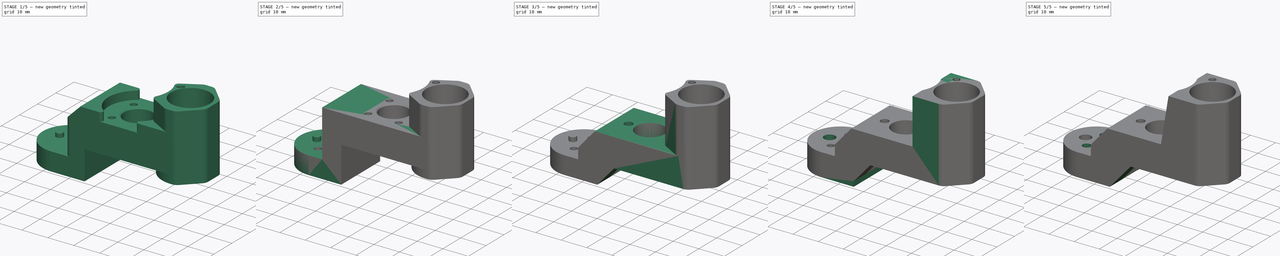
[diagram: build sequence overview — one tinted view per stage of 5, left to right]
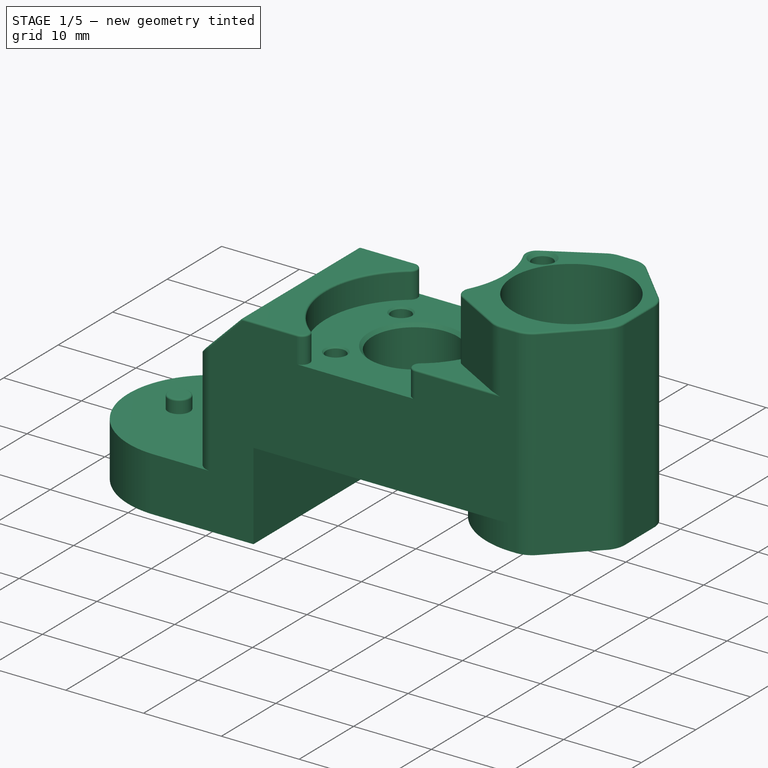
[diagram: stage 1 of 5 — iso view after this stage's code; geometry added in this stage tinted green]
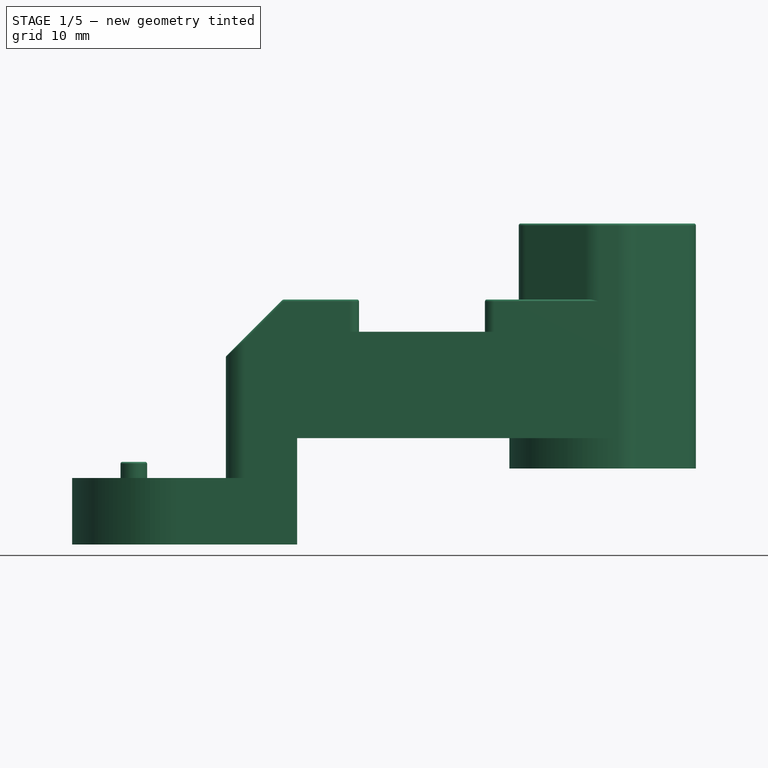
[diagram: stage 1 of 5 — front view after this stage's code; geometry added in this stage tinted green]
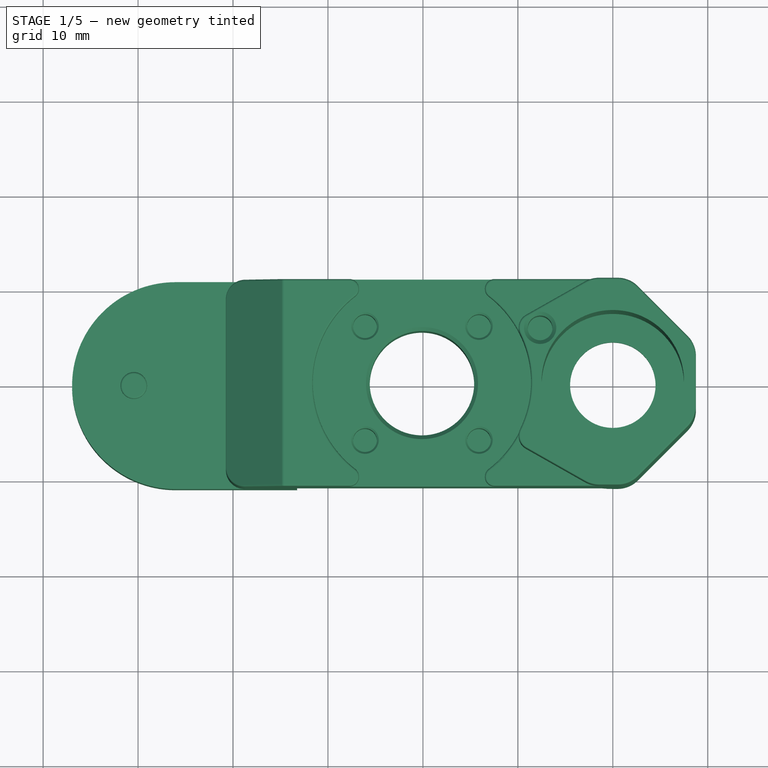
[diagram: stage 1 of 5 — top view after this stage's code; geometry added in this stage tinted green]
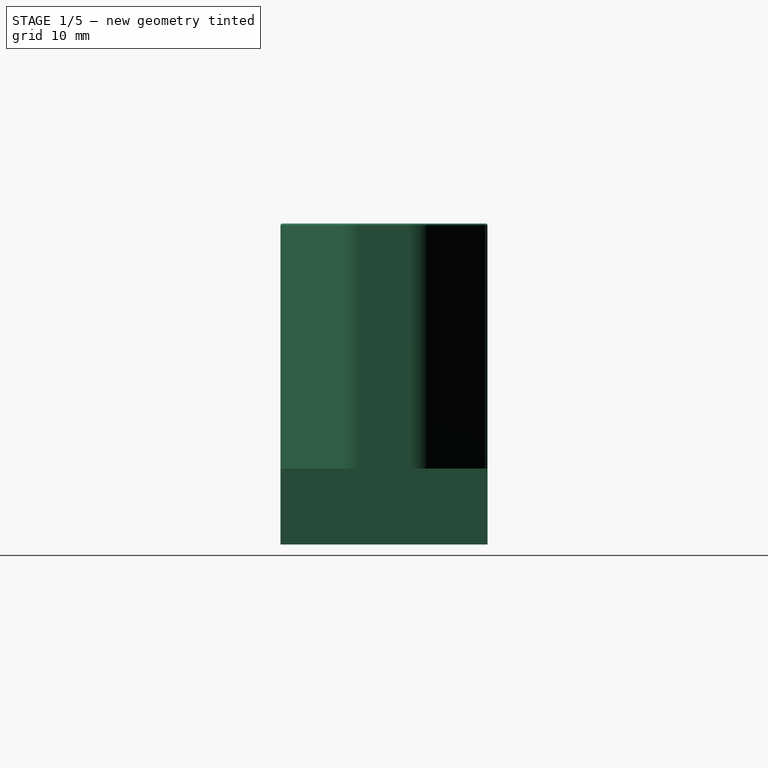
[diagram: stage 1 of 5 — right view after this stage's code; geometry added in this stage tinted green]
FCSTD DOCUMENT  (FreeCAD 1.0R38641 +468 (Git))
Label: k1_z_carriage_oldham
License: All rights reserved
LicenseURL: https://en.wikipedia.org/wiki/All_rights_reserved
objects: Sketcher::SketchObject×29, PartDesign::Pocket×23, PartDesign::Pad×23, PartDesign::Line×5, PartDesign::Plane×2, Part::Feature×1, PartDesign::FeatureBase×1, PartDesign::Body×1
note: 207 computed .brp shape members not serialized (recipe doc carries the construction recipe); baked Part::Feature solids carry a one-line shape summary decoded from their .brp

FEATURE [Part::Feature] Part__Feature  label="step"
  shape: bbox 66.85 x 23.6 x 35.28 mm, 210 faces (baked)
FEATURE [PartDesign::FeatureBase] BaseFeature
  BaseFeature = -> Part__Feature
  Suppressed = false
FEATURE [PartDesign::Plane] DatumPlane
  AttachmentOffset = pos=(0,0,-5) rot=(0,0,1;0rad)
  AttachmentSupport = -> [BaseFeature]
  Length = 94.6667
  MapMode = 5
  Placement = pos=(0,0,3) rot=(0,0,1;0rad)
  ResizeMode = 0
  Width = 62.7961
FEATURE [Sketcher::SketchObject] Sketch
  ArcFitTolerance = 1e-06
  AttachmentSupport = -> [DatumPlane]
  FullyConstrained = true
  MakeInternals = false
  MapMode = 5
  Placement = pos=(0,0,3) rot=(0,0,1;0rad)
  sketch-geometry (4):
    g0: LineSegment StartX=-60.63 StartY=14.24 StartZ=0 EndX=-60.63 EndY=-14.24 EndZ=0
    g1: LineSegment StartX=-60.63 StartY=-14.24 StartZ=0 EndX=-26.34 EndY=-14.24 EndZ=0
    g2: LineSegment StartX=-26.34 StartY=-14.24 StartZ=0 EndX=-26.34 EndY=14.24 EndZ=0
    g3: LineSegment StartX=-26.34 StartY=14.24 StartZ=0 EndX=-60.63 EndY=14.24 EndZ=0
  constraints (11):
    c: Coincident(g0,g1)
    c: Coincident(g1,g2)
    c: Coincident(g2,g3)
    c: Coincident(g3,g0)
    c: Vertical(g0)
    c: Horizontal(g1)
    c: Horizontal(g3)
    c: Symmetric(g1,g2,g-1)
    c: DistanceY(g2,g2) = 28.48
    c: Distance(g2,g-2) = 26.34
    c: Distance(g3,g3) = 34.29
FEATURE [PartDesign::Pocket] Pocket
  BaseFeature = -> BaseFeature
  Direction = (0,0,-1)
  Length = 5
  Length2 = 5
  Profile = -> Sketch
  ReferenceAxis = -> Sketch [N_Axis]
  Refine = true
  Suppressed = false
  Type = 0
FEATURE [PartDesign::Pad] Pad
  BaseFeature = -> Pocket
  Direction = (0,0,-1)
  Length = 2
  Length2 = 10
  Profile = -> Pocket [Face11]
  Refine = true
  Suppressed = false
  Type = 0
FEATURE [PartDesign::Pad] Pad001
  BaseFeature = -> Pad
  Direction = (0,0,-1)
  Length = 10
  Length2 = 10
  Profile = -> Pad [Face28,Face40,Face105,Face106]
  Refine = true
  Suppressed = false
  Type = 3
  UpToFace = -> Pad [Face33]
FEATURE [PartDesign::Line] DatumLine
  AttacherType = Attacher::AttachEngineLine
  AttachmentSupport = -> [Pad001]
  Length = 20
  MapMode = 19
  Placement = pos=(-20.1,1.4e-15,12.1) rot=(0,0,1;3.14159rad)
  ResizeMode = 0
FEATURE [PartDesign::Line] DatumLine001
  AttacherType = Attacher::AttachEngineLine
  AttachmentSupport = -> [Pad001]
  Length = 20
  MapMode = 19
  Placement = pos=(0,0,8.8) rot=(0,0,1;3.14159rad)
  ResizeMode = 0
FEATURE [Sketcher::SketchObject] Sketch001
  ArcFitTolerance = 1e-06
  AttachmentSupport = -> [Pad001]
  ExternalGeometry = -> [Pad001]
  FullyConstrained = true
  MakeInternals = false
  MapMode = 5
  Placement = pos=(0,10.9,0) rot=(0,0.707107,0.707107;3.14159rad)
  sketch-geometry (4):
    g0: LineSegment StartX=33.25 StartY=1 StartZ=0 EndX=33.25 EndY=12.2 EndZ=0
    g1: LineSegment StartX=33.25 StartY=12.2 StartZ=0 EndX=-8.75 EndY=12.2 EndZ=0
    g2: LineSegment StartX=-8.75 StartY=12.2 StartZ=0 EndX=-8.75 EndY=1 EndZ=0
    g3: LineSegment StartX=-8.75 StartY=1 StartZ=0 EndX=33.25 EndY=1 EndZ=0
  constraints (11):
    c: Coincident(g0,g1)
    c: Coincident(g1,g2)
    c: Coincident(g2,g3)
    c: Coincident(g3,g0)
    c: Vertical(g0)
    c: Vertical(g2)
    c: Horizontal(g1)
    c: Horizontal(g3)
    c: Coincident(g0,g-3)
    c: PointOnObject(g1,g-5)
    c: Distance(g-4,g1) = 0.1
FEATURE [PartDesign::Pocket] Pocket001
  BaseFeature = -> Pad001
  Direction = (0,-1,2e-16)
  Length = 5
  Length2 = 5
  Profile = -> Sketch001
  ReferenceAxis = -> Sketch001 [N_Axis]
  Refine = true
  Suppressed = false
  Type = 1
FEATURE [PartDesign::Line] DatumLine002
  AttacherType = Attacher::AttachEngineLine
  AttachmentSupport = -> [Pocket001]
  Length = 20
  MapMode = 19
  Placement = pos=(-7.65632,5.62413,34.8) rot=(0,0,1;0rad)
  ResizeMode = 0
FEATURE [Sketcher::SketchObject] Sketch002
  ArcFitTolerance = 1e-06
  AttachmentSupport = -> [Pocket001]
  ExternalGeometry = -> [Pocket001]
  FullyConstrained = true
  MakeInternals = false
  MapMode = 5
  Placement = pos=(0,2.7e-15,12.2) rot=(1,0,0;3.14159rad)
  sketch-geometry (11):
    g0: ArcOfCircle CenterX=0 CenterY=0 CenterZ=0 NormalX=0 NormalY=0 NormalZ=1 AngleXU=0 Radius=10.9 StartAngle=1.5708 EndAngle=4.71239
    g1: LineSegment StartX=-3.32407e-07 StartY=10.9 StartZ=0 EndX=0.507359 EndY=10.9 EndZ=0
    g2: LineSegment StartX=2.62868 StartY=10.0213 StartZ=0 EndX=7.87132 EndY=4.77868 EndZ=0
    g3: LineSegment StartX=8.75 StartY=-2.65736 StartZ=0 EndX=8.75 EndY=2.65736 EndZ=0
    g4: LineSegment StartX=2.62868 StartY=-10.0213 StartZ=0 EndX=7.87132 EndY=-4.77868 EndZ=0
    g5: ArcOfCircle CenterX=0.507359 CenterY=7.9 CenterZ=0 NormalX=0 NormalY=0 NormalZ=1 AngleXU=0 Radius=3 StartAngle=0.785398 EndAngle=1.5708
    g6: ArcOfCircle CenterX=5.75 CenterY=2.65736 CenterZ=0 NormalX=0 NormalY=0 NormalZ=1 AngleXU=0 Radius=3 StartAngle=9e-16 EndAngle=0.785398
    g7: ArcOfCircle CenterX=5.75 CenterY=-2.65736 CenterZ=0 NormalX=0 NormalY=0 NormalZ=1 AngleXU=0 Radius=3 StartAngle=5.49779 EndAngle=6.28319
    g8: ArcOfCircle CenterX=0.507359 CenterY=-7.9 CenterZ=0 NormalX=0 NormalY=0 NormalZ=1 AngleXU=0 Radius=3 StartAngle=4.71239 EndAngle=5.49779
    g9: LineSegment StartX=0.507359 StartY=-10.9 StartZ=0 EndX=-2e-15 EndY=-10.9 EndZ=0
    g10: Circle CenterX=0 CenterY=0 CenterZ=0 NormalX=0 NormalY=0 NormalZ=1 AngleXU=0 Radius=7.49999
  constraints (28):
    c: Coincident(g0,g-1)
    c: PointOnObject(g0,g-7)
    c: Tangent(g0,g-6) = -1.5708
    c: Coincident(g1,g0)
    c: Coincident(g1,g-8)
    c: Coincident(g2,g-8)
    c: Coincident(g2,g-9)
    c: Coincident(g4,g-11)
    c: Coincident(g4,g-10)
    c: Radius(g-8) = 3
    c: Coincident(g5,g1)
    c: Coincident(g5,g2)
    c: Coincident(g6,g2)
    c: Coincident(g6,g3)
    c: Coincident(g7,g3)
    c: Coincident(g7,g4)
    c: Coincident(g8,g4)
    c: Coincident(g8,g-11)
    c: Coincident(g9,g8)
    c: Coincident(g9,g0)
    c: Coincident(g3,g-9)
    c: Radius(g5) = 3
    c: Radius(g6) = 3
    c: Radius(g7) = 3
    c: Radius(g8) = 3
    c: Coincident(g3,g-10)
    c: Coincident(g10,g0)
    c: Tangent(g10,g-12)
FEATURE [PartDesign::Pad] Pad002
  BaseFeature = -> Pocket001
  Direction = (0,0,-1)
  Length = 3.2
  Length2 = 10
  Profile = -> Sketch002
  ReferenceAxis = -> Sketch002 [N_Axis]
  Refine = true
  Suppressed = false
  Type = 0
FEATURE [Sketcher::SketchObject] Sketch003
  ArcFitTolerance = 1e-06
  AttachmentSupport = -> [Pad002]
  ExternalGeometry = -> [Pad002]
  FullyConstrained = true
  MakeInternals = false
  MapMode = 5
  Placement = pos=(0,0,9) rot=(1,0,0;3.14159rad)
  sketch-geometry (2):
    g0: Circle CenterX=0 CenterY=0 CenterZ=0 NormalX=0 NormalY=0 NormalZ=1 AngleXU=0 Radius=4.5
    g1: Circle CenterX=0 CenterY=0 CenterZ=0 NormalX=0 NormalY=0 NormalZ=1 AngleXU=0 Radius=7.49999
  constraints (4):
    c: Coincident(g0,g-1)
    c: Coincident(g1,g0)
    c: Tangent(g1,g-3)
    c: Diameter(g0) = 9
FEATURE [PartDesign::Pad] Pad003
  BaseFeature = -> Pad002
  Direction = (0,0,-1)
  Length = 2
  Length2 = 10
  Profile = -> Sketch003
  ReferenceAxis = -> Sketch003 [N_Axis]
  Refine = true
  Reversed = true
  Suppressed = false
  Type = 0
FEATURE [PartDesign::Plane] DatumPlane001
  AttachmentOffset = pos=(0,0,-1) rot=(0,0,1;0rad)
  AttachmentSupport = -> [Pad003]
  Length = 94.6667
  MapMode = 5
  Placement = pos=(0,0,7) rot=(0,0,1;0rad)
  ResizeMode = 0
  Width = 62.7961
FEATURE [Sketcher::SketchObject] Sketch004
  ArcFitTolerance = 1e-06
  AttachmentSupport = -> [DatumPlane001]
  ExternalGeometry = -> [Pad003]
  FullyConstrained = true
  MakeInternals = false
  MapMode = 5
  Placement = pos=(0,0,7) rot=(0,0,1;0rad)
  sketch-geometry (4):
    g0: LineSegment StartX=-46.05 StartY=10.9 StartZ=0 EndX=-33.25 EndY=10.9 EndZ=0
    g1: LineSegment StartX=-33.25 StartY=10.9 StartZ=0 EndX=-33.25 EndY=-10.9 EndZ=0
    g2: LineSegment StartX=-33.25 StartY=-10.9 StartZ=0 EndX=-46.05 EndY=-10.9 EndZ=0
    g3: ArcOfCircle CenterX=-46.05 CenterY=-3e-16 CenterZ=0 NormalX=0 NormalY=0 NormalZ=1 AngleXU=0 Radius=10.9 StartAngle=1.5708 EndAngle=4.71239
  constraints (10):
    c: Coincident(g1,g0)
    c: Coincident(g1,g-6)
    c: Coincident(g2,g-6)
    c: Coincident(g2,g1)
    c: Coincident(g0,g-5)
    c: Coincident(g0,g-5)
    c: Radius(g-3) = 10.9
    c: Coincident(g3,g0)
    c: Coincident(g3,g2)
    c: Tangent(g3,g-3)
FEATURE [PartDesign::Pad] Pad004
  BaseFeature = -> Pad003
  Direction = (0,0,1)
  Length = 1.2
  Length2 = 10
  Profile = -> Sketch004
  ReferenceAxis = -> Sketch004 [N_Axis]
  Refine = true
  Suppressed = false
  Type = 0
FEATURE [PartDesign::Pocket] Pocket002
  BaseFeature = -> Pad004
  Direction = (0,0,-1)
  Length = 0.2
  Length2 = 5
  Profile = -> Pad004 [Face8]
  Refine = true
  Suppressed = false
  Type = 0
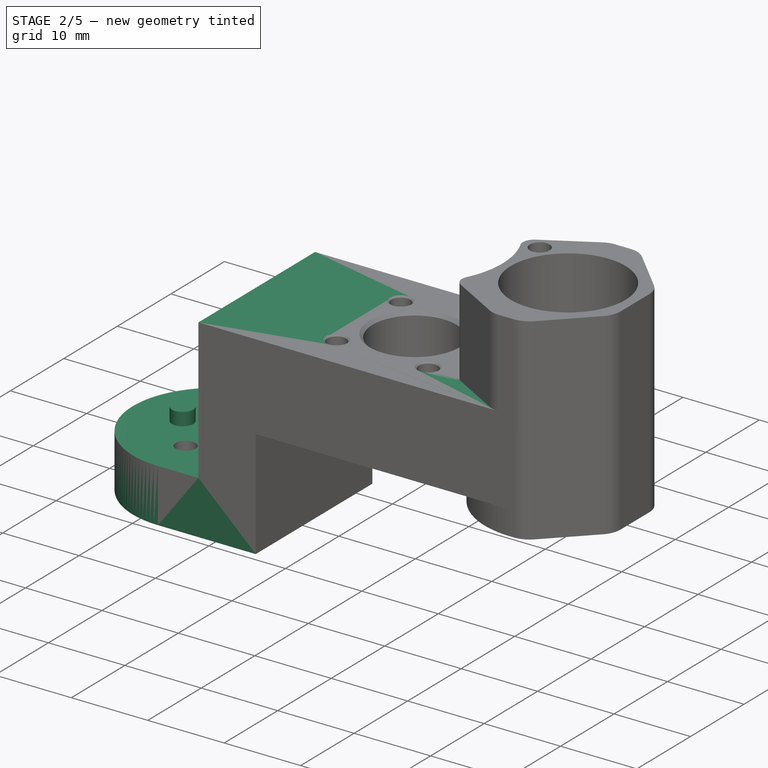
[diagram: stage 2 of 5 — iso view after this stage's code; geometry added in this stage tinted green]
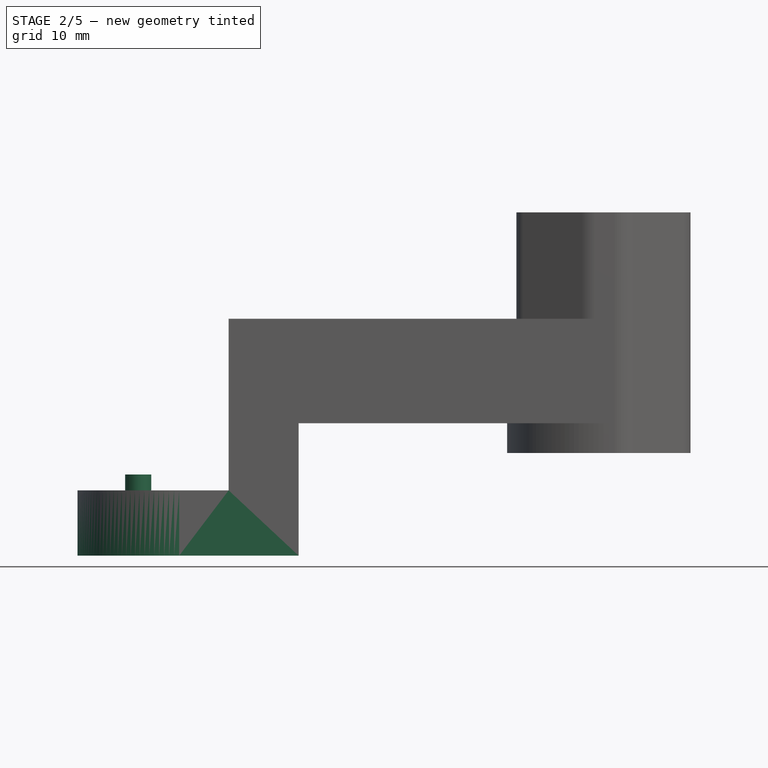
[diagram: stage 2 of 5 — front view after this stage's code; geometry added in this stage tinted green]
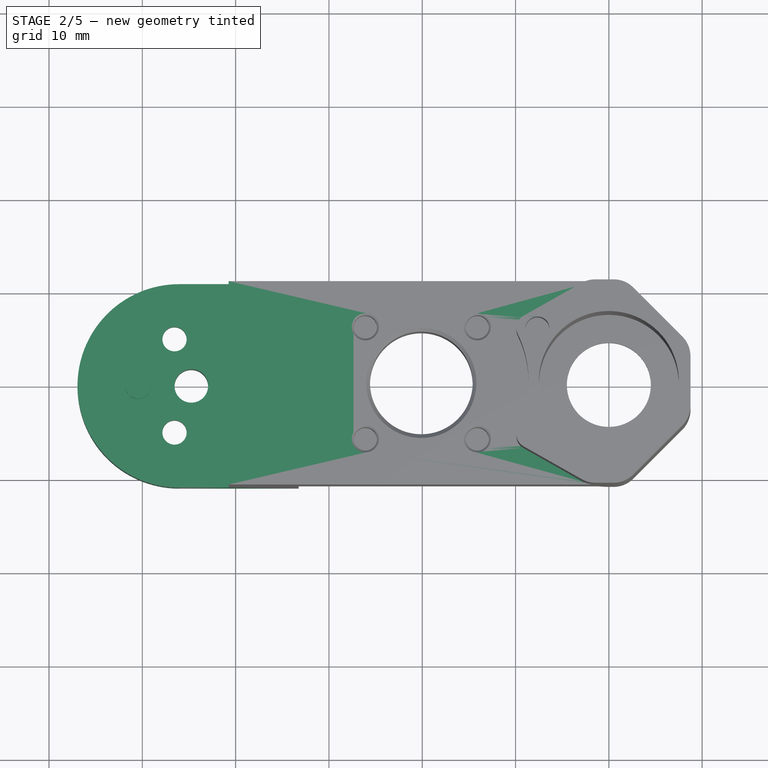
[diagram: stage 2 of 5 — top view after this stage's code; geometry added in this stage tinted green]
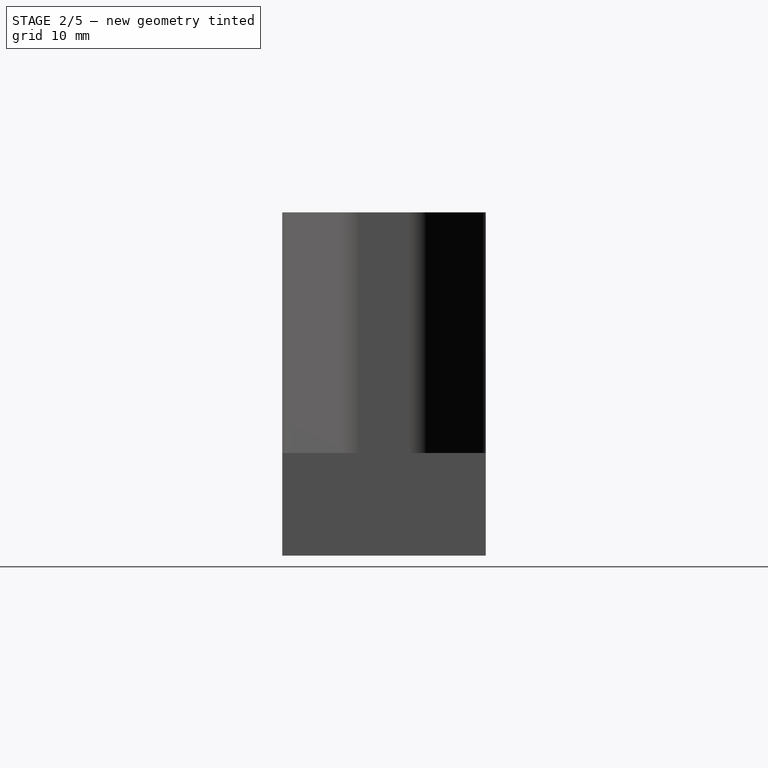
[diagram: stage 2 of 5 — right view after this stage's code; geometry added in this stage tinted green]
FEATURE [PartDesign::Pocket] Pocket003
  BaseFeature = -> Pocket002
  Direction = (0,0,1)
  Length = 5
  Length2 = 5
  Profile = -> Pocket002 [Face81,Face83,Face82]
  Refine = true
  Suppressed = false
  Type = 0
FEATURE [PartDesign::Pocket] Pocket004
  BaseFeature = -> Pocket003
  Direction = (0,0,-1)
  Length = 3
  Length2 = 5
  Profile = -> Pocket003 [Face4]
  Refine = true
  Suppressed = false
  Type = 0
FEATURE [PartDesign::Pad] Pad005
  BaseFeature = -> Pocket004
  Direction = (0,0,-1)
  Length = 3
  Length2 = 10
  Profile = -> Pocket004 [Face8]
  Refine = true
  Suppressed = false
  Type = 0
FEATURE [Sketcher::SketchObject] Sketch005
  ArcFitTolerance = 1e-06
  AttachmentSupport = -> [Pad005]
  ExternalGeometry = -> [Pad005]
  FullyConstrained = true
  MakeInternals = false
  MapMode = 5
  Placement = pos=(0,0,9.7) rot=(0,0,1;0rad)
  sketch-geometry (1):
    g0: Circle CenterX=-50.45 CenterY=0 CenterZ=0 NormalX=0 NormalY=0 NormalZ=1 AngleXU=0 Radius=1.4
  constraints (2):
    c: Coincident(g0,g-3)
    c: Equal(g0,g-3)
FEATURE [PartDesign::Pocket] Pocket005
  BaseFeature = -> Pad005
  Direction = (0,0,-1)
  Length = 3
  Length2 = 5
  Profile = -> Sketch005
  ReferenceAxis = -> Sketch005 [N_Axis]
  Refine = true
  Suppressed = false
  Type = 0
FEATURE [Sketcher::SketchObject] Sketch006
  ArcFitTolerance = 1e-06
  AttachmentSupport = -> [Pocket005]
  ExternalGeometry = -> [Pocket005]
  FullyConstrained = true
  MakeInternals = false
  MapMode = 5
  Placement = pos=(0,0,-2) rot=(1,0,0;3.14159rad)
  sketch-geometry (2):
    g0: Circle CenterX=-46.55 CenterY=5 CenterZ=0 NormalX=0 NormalY=0 NormalZ=1 AngleXU=0 Radius=2.15
    g1: Circle CenterX=-46.55 CenterY=-5 CenterZ=0 NormalX=0 NormalY=0 NormalZ=1 AngleXU=0 Radius=2.15
  constraints (4):
    c: Coincident(g0,g-3)
    c: Coincident(g1,g-4)
    c: Equal(g1,g0)
    c: Diameter(g0) = 4.3
FEATURE [PartDesign::Pocket] Pocket006
  BaseFeature = -> Pocket005
  Direction = (0,0,1)
  Length = 4
  Length2 = 5
  Profile = -> Sketch006
  ReferenceAxis = -> Sketch006 [N_Axis]
  Refine = true
  Suppressed = false
  Type = 0
FEATURE [Sketcher::SketchObject] Sketch007
  ArcFitTolerance = 1e-06
  AttachmentSupport = -> [Pocket006]
  FullyConstrained = true
  MakeInternals = false
  MapMode = 5
  Placement = pos=(0,0,34.8) rot=(0,0,1;0rad)
  sketch-geometry (4):
    g0: LineSegment StartX=-14.985 StartY=14.345 StartZ=0 EndX=-14.985 EndY=-14.345 EndZ=0
    g1: LineSegment StartX=-14.985 StartY=-14.345 StartZ=0 EndX=14.985 EndY=-14.345 EndZ=0
    g2: LineSegment StartX=14.985 StartY=-14.345 StartZ=0 EndX=14.985 EndY=14.345 EndZ=0
    g3: LineSegment StartX=14.985 StartY=14.345 StartZ=0 EndX=-14.985 EndY=14.345 EndZ=0
  constraints (10):
    c: Coincident(g0,g1)
    c: Coincident(g1,g2)
    c: Coincident(g2,g3)
    c: Coincident(g3,g0)
    c: Vertical(g0)
    c: Horizontal(g1)
    c: Symmetric(g1,g2,g-1)
    c: Symmetric(g0,g2,g-2)
    c: Distance(g1,g1) = 29.97
    c: DistanceY(g2,g2) = 28.69
FEATURE [PartDesign::Pocket] Pocket007
  BaseFeature = -> Pocket006
  Direction = (0,0,-1)
  Length = 0.5
  Length2 = 5
  Profile = -> Sketch007
  ReferenceAxis = -> Sketch007 [N_Axis]
  Refine = true
  Suppressed = false
  Type = 0
FEATURE [PartDesign::Pad] Pad006
  BaseFeature = -> Pocket007
  Direction = (0,0,1)
  Length = 0.5
  Length2 = 10
  Profile = -> Pocket007 [Face6]
  Refine = true
  Suppressed = false
  Type = 0
FEATURE [Sketcher::SketchObject] Sketch008
  ArcFitTolerance = 1e-06
  AttachmentSupport = -> [Pad006]
  ExternalGeometry = -> [Pad006]
  FullyConstrained = true
  MakeInternals = false
  MapMode = 5
  Placement = pos=(0,0,34.8) rot=(0,0,1;0rad)
  sketch-geometry (10):
    g0: LineSegment StartX=-1.45589 StartY=10.9 StartZ=0 EndX=-45.6259 EndY=10.9 EndZ=0
    g1: LineSegment StartX=-1.45589 StartY=-10.9 StartZ=0 EndX=-45.6259 EndY=-10.9 EndZ=0
    g2: LineSegment StartX=-45.6259 StartY=-10.9 StartZ=0 EndX=-45.6259 EndY=10.9 EndZ=0
    g3: LineSegment StartX=-9.14877 StartY=6.99193 StartZ=0 EndX=-2.93396 EndY=10.5106 EndZ=0
    g4: LineSegment StartX=-9.14877 StartY=-6.99193 StartZ=0 EndX=-2.93396 EndY=-10.5106 EndZ=0
    g5: ArcOfCircle CenterX=-20.1 CenterY=2.2e-15 CenterZ=0 NormalX=0 NormalY=0 NormalZ=1 AngleXU=0 Radius=11.5 StartAngle=5.83044 EndAngle=6.73593
    g6: ArcOfCircle CenterX=-1.45589 CenterY=7.9 CenterZ=0 NormalX=0 NormalY=0 NormalZ=1 AngleXU=0 Radius=3 StartAngle=1.5708 EndAngle=2.08598
    g7: ArcOfCircle CenterX=-8.40973 CenterY=5.68662 CenterZ=0 NormalX=0 NormalY=0 NormalZ=1 AngleXU=0 Radius=1.5 StartAngle=2.08598 EndAngle=3.59433
    g8: ArcOfCircle CenterX=-8.40973 CenterY=-5.68662 CenterZ=0 NormalX=0 NormalY=0 NormalZ=1 AngleXU=0 Radius=1.5 StartAngle=2.68885 EndAngle=4.19721
    g9: ArcOfCircle CenterX=-1.45589 CenterY=-7.9 CenterZ=0 NormalX=0 NormalY=0 NormalZ=1 AngleXU=0 Radius=3 StartAngle=4.19721 EndAngle=4.71239
  constraints (30):
    c: Coincident(g0,g-5)
    c: Horizontal(g0)
    c: Coincident(g1,g-6)
    c: Horizontal(g1)
    c: Coincident(g2,g1)
    c: Coincident(g2,g0)
    c: Vertical(g2)
    c: Distance(g0,g0) = 44.17
    c: Coincident(g3,g-9)
    c: Coincident(g3,g-9)
    c: Coincident(g4,g-7)
    c: Coincident(g4,g-7)
    c: Coincident(g5,g-8)
    c: Coincident(g5,g-8)
    c: Radius(g-8) = 11.5
    c: Radius(g5) = 11.5
    c: Radius(g-10) = 1.5
    c: Radius(g-11) = 3
    c: Coincident(g6,g0)
    c: Coincident(g6,g3)
    c: Coincident(g7,g3)
    c: Coincident(g7,g5)
    c: Coincident(g8,g5)
    c: Coincident(g8,g4)
    c: Radius(g8) = 1.5
    c: Radius(g7) = 1.5
    c: Radius(g6) = 3
    c: Coincident(g9,g4)
    c: Coincident(g9,g1)
    c: Radius(g9) = 3
FEATURE [PartDesign::Pocket] Pocket008
  BaseFeature = -> Pad006
  Direction = (0,0,-1)
  Length = 0
  Length2 = 5
  Profile = -> Sketch008
  ReferenceAxis = -> Sketch008 [N_Axis]
  Refine = true
  Suppressed = false
  Type = 3
  UpToFace = -> Pad006 [Face32]
FEATURE [Sketcher::SketchObject] Sketch009
  ArcFitTolerance = 1e-06
  AttachmentSupport = -> [Pocket008]
  ExternalGeometry = -> [Pocket008]
  FullyConstrained = true
  MakeInternals = false
  MapMode = 5
  Placement = pos=(0,0,23.4) rot=(0,0,1;0rad)
  sketch-geometry (4):
    g0: LineSegment StartX=-37.8672 StartY=10.9 StartZ=0 EndX=-40.75 EndY=10.9 EndZ=0
    g1: LineSegment StartX=-40.75 StartY=10.9 StartZ=0 EndX=-40.75 EndY=-10.9 EndZ=0
    g2: LineSegment StartX=-40.75 StartY=-10.9 StartZ=0 EndX=-37.8672 EndY=-10.9 EndZ=0
    g3: LineSegment StartX=-37.8672 StartY=-10.9 StartZ=0 EndX=-37.8672 EndY=10.9 EndZ=0
  constraints (11):
    c: Coincident(g0,g1)
    c: Coincident(g1,g2)
    c: Coincident(g2,g3)
    c: Coincident(g3,g0)
    c: Horizontal(g0)
    c: Horizontal(g2)
    c: Vertical(g1)
    c: Vertical(g3)
    c: Coincident(g0,g-3)
    c: PointOnObject(g1,g-5)
    c: PointOnObject(g0,g-4)
FEATURE [PartDesign::Pocket] Pocket009
  BaseFeature = -> Pocket008
  Direction = (0,0,-1)
  Length = 0
  Length2 = 5
  Profile = -> Sketch009
  ReferenceAxis = -> Sketch009 [N_Axis]
  Refine = true
  Suppressed = false
  Type = 3
  UpToFace = -> Pocket008 [Face22]
FEATURE [PartDesign::Pad] Pad007
  BaseFeature = -> Pocket009
  Direction = (-1,0,0)
  Length = 2.88
  Length2 = 10
  Profile = -> Pocket009 [Face27]
  Refine = true
  Suppressed = false
  Type = 0
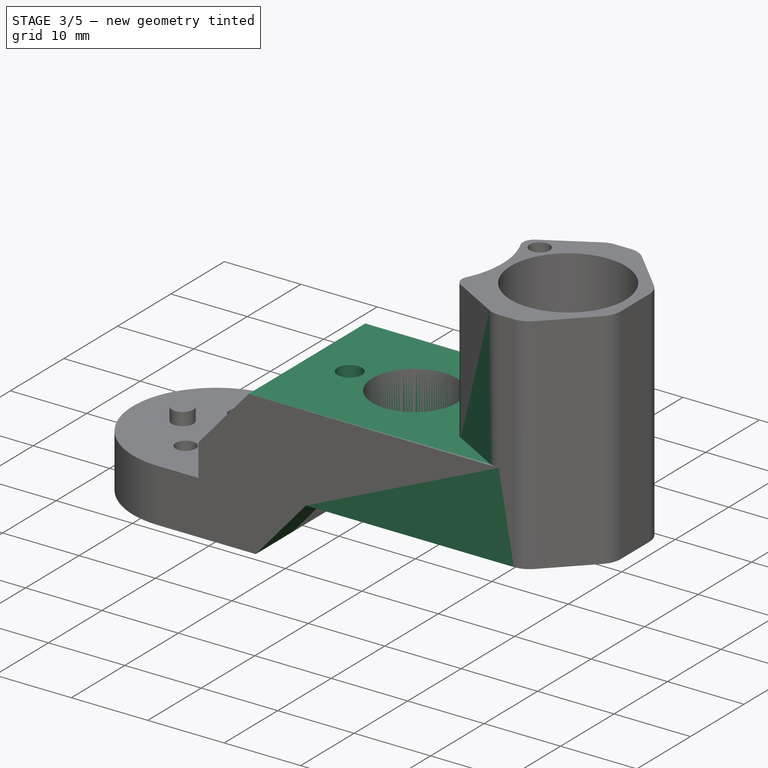
[diagram: stage 3 of 5 — iso view after this stage's code; geometry added in this stage tinted green]
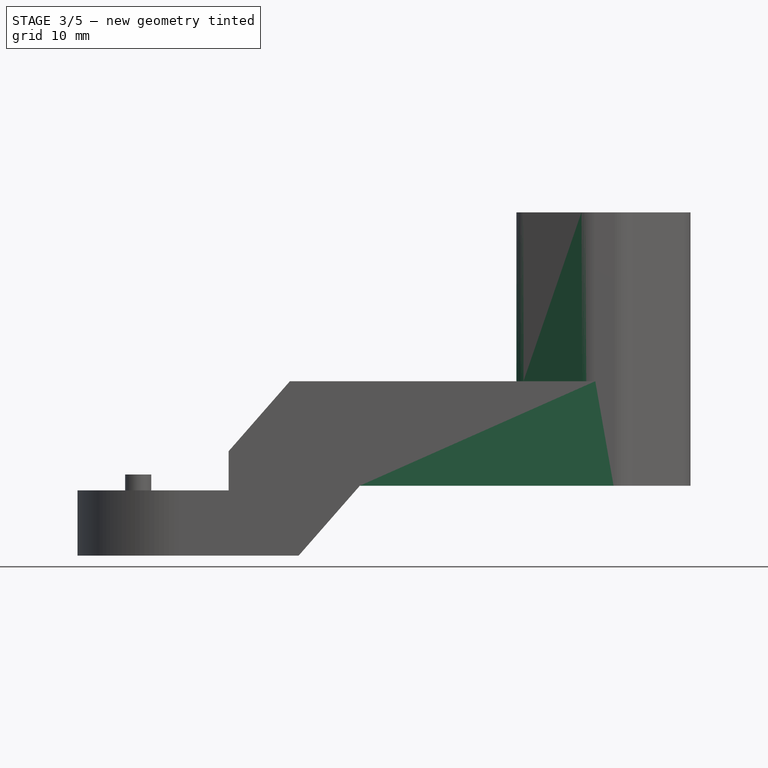
[diagram: stage 3 of 5 — front view after this stage's code; geometry added in this stage tinted green]
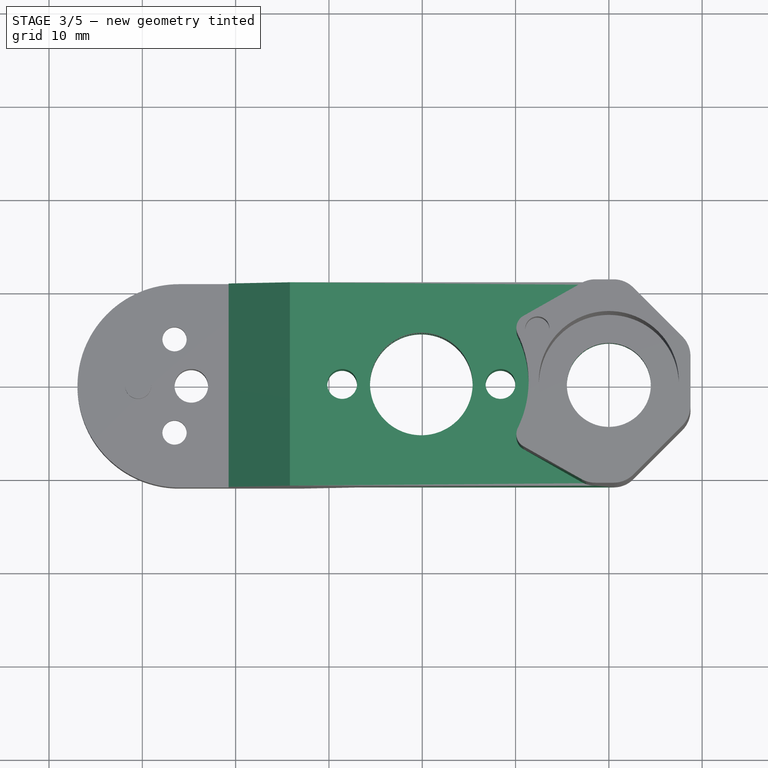
[diagram: stage 3 of 5 — top view after this stage's code; geometry added in this stage tinted green]
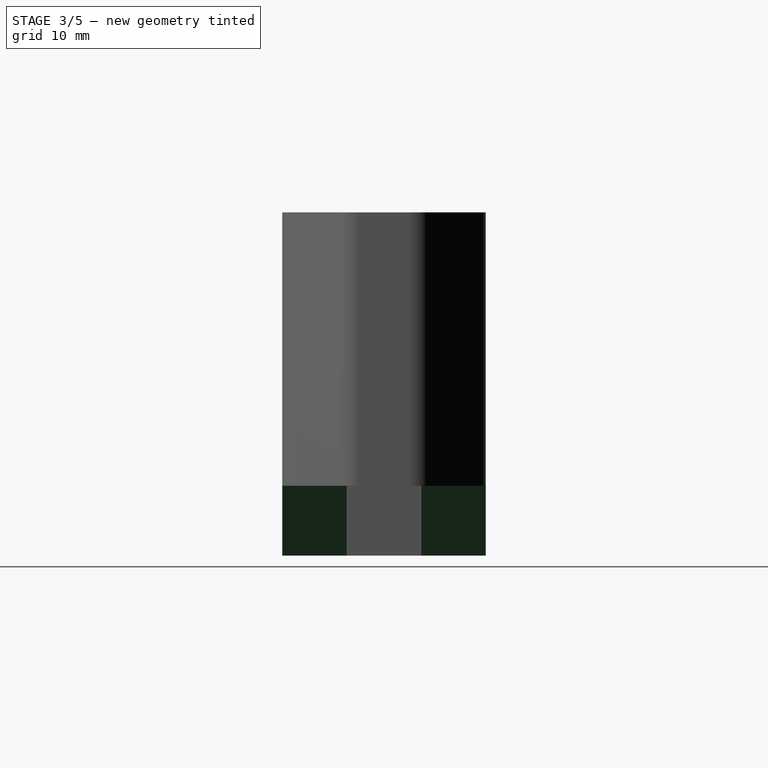
[diagram: stage 3 of 5 — right view after this stage's code; geometry added in this stage tinted green]
FEATURE [PartDesign::Line] DatumLine003
  AttacherType = Attacher::AttachEngineLine
  AttachmentSupport = -> [Pad007]
  Length = 20
  MapMode = 19
  Placement = pos=(-26.1,6,23.2) rot=(0,1,0;3.14159rad)
  ResizeMode = 0
FEATURE [PartDesign::Line] DatumLine004
  AttacherType = Attacher::AttachEngineLine
  AttachmentSupport = -> [Pad007]
  Length = 20
  MapMode = 19
  Placement = pos=(-14.1,-6,23.2) rot=(0,1,0;3.14159rad)
  ResizeMode = 0
FEATURE [Sketcher::SketchObject] Sketch010
  ArcFitTolerance = 1e-06
  AttachmentSupport = -> [Pad007]
  ExternalGeometry = -> [Pad007]
  FullyConstrained = true
  MakeInternals = false
  MapMode = 5
  Placement = pos=(0,0,23.4) rot=(0,0,1;0rad)
  sketch-geometry (4):
    g0: LineSegment StartX=-32.82 StartY=10.9 StartZ=0 EndX=-32.82 EndY=-10.9 EndZ=0
    g1: LineSegment StartX=-32.82 StartY=-10.9 StartZ=0 EndX=-11 EndY=-10.9 EndZ=0
    g2: LineSegment StartX=-11 StartY=-10.9 StartZ=0 EndX=-11 EndY=10.9 EndZ=0
    g3: LineSegment StartX=-11 StartY=10.9 StartZ=0 EndX=-32.82 EndY=10.9 EndZ=0
  constraints (12):
    c: Coincident(g0,g1)
    c: Coincident(g1,g2)
    c: Coincident(g2,g3)
    c: Coincident(g3,g0)
    c: Vertical(g0)
    c: Vertical(g2)
    c: Horizontal(g1)
    c: Horizontal(g3)
    c: PointOnObject(g0,g-3)
    c: PointOnObject(g1,g-4)
    c: Distance(g2,g-2) = 11
    c: Distance(g1,g1) = 21.82
FEATURE [PartDesign::Pocket] Pocket010
  BaseFeature = -> Pad007
  Direction = (0,0,-1)
  Length = 6
  Length2 = 5
  Profile = -> Sketch010
  ReferenceAxis = -> Sketch010 [N_Axis]
  Refine = true
  Suppressed = false
  Type = 0
FEATURE [PartDesign::Pad] Pad008
  BaseFeature = -> Pocket010
  Direction = (0,0,1)
  Length = 10
  Length2 = 10
  Profile = -> Pocket010 [Face28]
  Refine = true
  Suppressed = false
  Type = 3
  UpToFace = -> Pocket010 [Face30]
FEATURE [PartDesign::Pocket] Pocket011
  BaseFeature = -> Pad008
  Direction = (0,0,-1)
  Length = 6.7
  Length2 = 5
  Profile = -> Pad008 [Face42]
  Refine = true
  Suppressed = false
  Type = 0
FEATURE [PartDesign::Pad] Pad009
  BaseFeature = -> Pocket011
  Direction = (0,-2e-16,-1)
  Length = 6.7
  Length2 = 10
  Profile = -> Pocket011 [Face10]
  Refine = true
  Suppressed = false
  Type = 0
FEATURE [PartDesign::Pad] Pad010
  BaseFeature = -> Pad009
  Direction = (0,0,-1)
  Length = 10
  Length2 = 10
  Profile = -> Pad009 [Face15]
  Refine = true
  Suppressed = false
  Type = 3
  UpToFace = -> Pad009 [Face24]
FEATURE [Sketcher::SketchObject] Sketch011
  ArcFitTolerance = 1e-06
  AttachmentSupport = -> [Pad010]
  ExternalGeometry = -> [Pad010]
  FullyConstrained = true
  MakeInternals = false
  MapMode = 5
  Placement = pos=(0,-10.9,0) rot=(1,0,0;1.5708rad)
  sketch-geometry (3):
    g0: LineSegment StartX=-33.25 StartY=-2 StartZ=0 EndX=-26.6842 EndY=5.5 EndZ=0
    g1: LineSegment StartX=-33.25 StartY=5.5 StartZ=0 EndX=-26.6842 EndY=5.5 EndZ=0
    g2: LineSegment StartX=-33.25 StartY=-2 StartZ=0 EndX=-33.25 EndY=5.5 EndZ=0
  constraints (7):
    c: Coincident(g0,g-3)
    c: PointOnObject(g0,g-4)
    c: Coincident(g1,g-4)
    c: Coincident(g1,g0)
    c: Coincident(g2,g0)
    c: Coincident(g2,g1)
    c: Angle(g0,g2) = 0.719076
FEATURE [PartDesign::Pad] Pad011
  BaseFeature = -> Pad010
  Direction = (0,-1,2e-16)
  Length = 10
  Length2 = 10
  Profile = -> Sketch011
  ReferenceAxis = -> Sketch011 [N_Axis]
  Refine = true
  Suppressed = false
  Type = 3
  UpToFace = -> Pad010 [Face31]
FEATURE [Sketcher::SketchObject] Sketch012
  ArcFitTolerance = 1e-06
  AttachmentSupport = -> [Pad011]
  ExternalGeometry = -> [Pad011]
  FullyConstrained = true
  MakeInternals = false
  MapMode = 5
  Placement = pos=(0,-10.9,0) rot=(1,0,0;1.5708rad)
  sketch-geometry (3):
    g0: LineSegment StartX=-40.7472 StartY=9.2 StartZ=0 EndX=-34.1814 EndY=16.7 EndZ=0
    g1: LineSegment StartX=-40.7472 StartY=9.2 StartZ=0 EndX=-40.7472 EndY=16.7 EndZ=0
    g2: LineSegment StartX=-40.7472 StartY=16.7 StartZ=0 EndX=-34.1814 EndY=16.7 EndZ=0
  constraints (8):
    c: PointOnObject(g0,g-3)
    c: PointOnObject(g0,g-4)
    c: Coincident(g1,g0)
    c: Coincident(g1,g-4)
    c: Coincident(g2,g1)
    c: Coincident(g2,g0)
    c: Parallel(g0,g-5)
    c: Distance(g1,g1) = 7.5
FEATURE [PartDesign::Pocket] Pocket012
  BaseFeature = -> Pad011
  Direction = (0,1,-2e-16)
  Length = 5
  Length2 = 5
  Profile = -> Sketch012
  ReferenceAxis = -> Sketch012 [N_Axis]
  Refine = true
  Suppressed = false
  Type = 1
FEATURE [Sketcher::SketchObject] Sketch013
  ArcFitTolerance = 1e-06
  AttachmentSupport = -> [Pocket012]
  ExternalGeometry = -> [DatumLine003,DatumLine004,Pocket012]
  FullyConstrained = true
  MakeInternals = false
  MapMode = 5
  Placement = pos=(0,0,16.7) rot=(0,0,1;0rad)
  sketch-geometry (3):
    g0: LineSegment [constr] StartX=-28.5853 StartY=0 StartZ=0 EndX=-11.6147 EndY=0 EndZ=0
    g1: Circle CenterX=-28.5853 CenterY=0 CenterZ=0 NormalX=0 NormalY=0 NormalZ=1 AngleXU=0 Radius=1.6
    g2: Circle CenterX=-11.6147 CenterY=0 CenterZ=0 NormalX=0 NormalY=0 NormalZ=1 AngleXU=0 Radius=1.6
  constraints (8):
    c: Distance(g-3,g-4) = 16.9706
    c: PointOnObject(g0,g-1)
    c: Symmetric(g0,g0,g-5)
    c: DistanceX(g0,g0) = 16.9706
    c: Coincident(g1,g0)
    c: Coincident(g2,g0)
    c: Equal(g2,g1)
    c: Diameter(g1) = 3.2
FEATURE [PartDesign::Pocket] Pocket013
  BaseFeature = -> Pocket012
  Direction = (0,0,-1)
  Length = 5
  Length2 = 5
  Profile = -> Sketch013
  ReferenceAxis = -> Sketch013 [N_Axis]
  Refine = true
  Suppressed = false
  Type = 1
FEATURE [Sketcher::SketchObject] Sketch015
  ArcFitTolerance = 1e-06
  AttachmentSupport = -> [Pocket013]
  ExternalGeometry = -> [Pocket013]
  FullyConstrained = true
  MakeInternals = false
  MapMode = 5
  Placement = pos=(0,0,-2) rot=(1,0,0;3.14159rad)
  sketch-geometry (4):
    g0: LineSegment StartX=-33.25 StartY=4 StartZ=0 EndX=-33.25 EndY=-4 EndZ=0
    g1: LineSegment StartX=-33.25 StartY=-4 StartZ=0 EndX=-26.6842 EndY=-4 EndZ=0
    g2: LineSegment StartX=-26.6842 StartY=-4 StartZ=0 EndX=-26.6842 EndY=4 EndZ=0
    g3: LineSegment StartX=-26.6842 StartY=4 StartZ=0 EndX=-33.25 EndY=4 EndZ=0
  constraints (11):
    c: Coincident(g0,g1)
    c: Coincident(g1,g2)
    c: Coincident(g2,g3)
    c: Coincident(g3,g0)
    c: Vertical(g2)
    c: Horizontal(g1)
    c: Horizontal(g3)
    c: Symmetric(g0,g0,g-1)
    c: Distance(g0,g0) = 8
    c: PointOnObject(g0,g-3)
    c: PointOnObject(g2,g-4)
FEATURE [PartDesign::Pocket] Pocket014
  BaseFeature = -> Pocket013
  Direction = (0,0,1)
  Length = 0
  Length2 = 5
  Profile = -> Sketch015
  ReferenceAxis = -> Sketch015 [N_Axis]
  Refine = true
  Suppressed = false
  Type = 3
  UpToFace = -> Pocket013 [Face10]
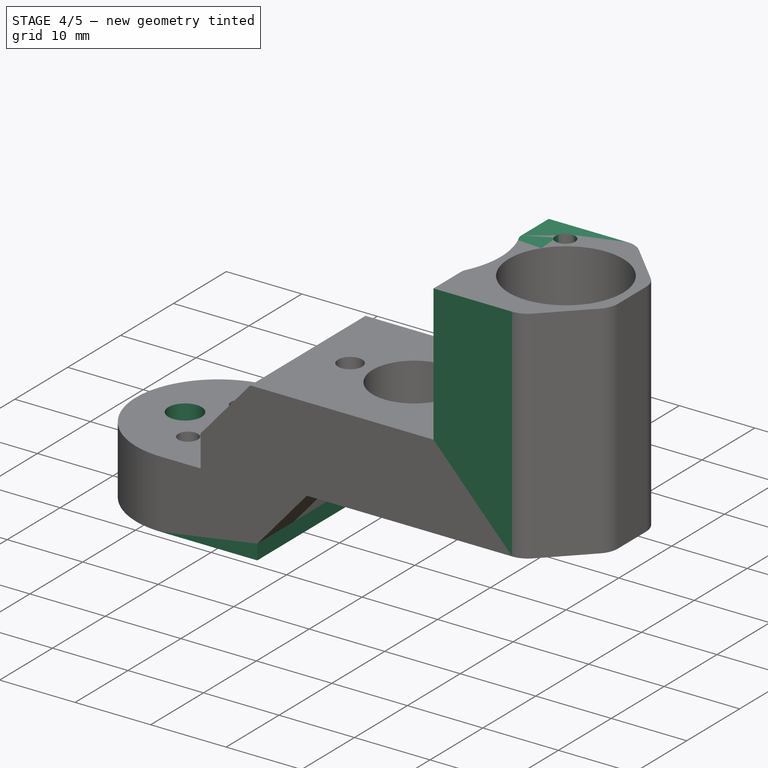
[diagram: stage 4 of 5 — iso view after this stage's code; geometry added in this stage tinted green]
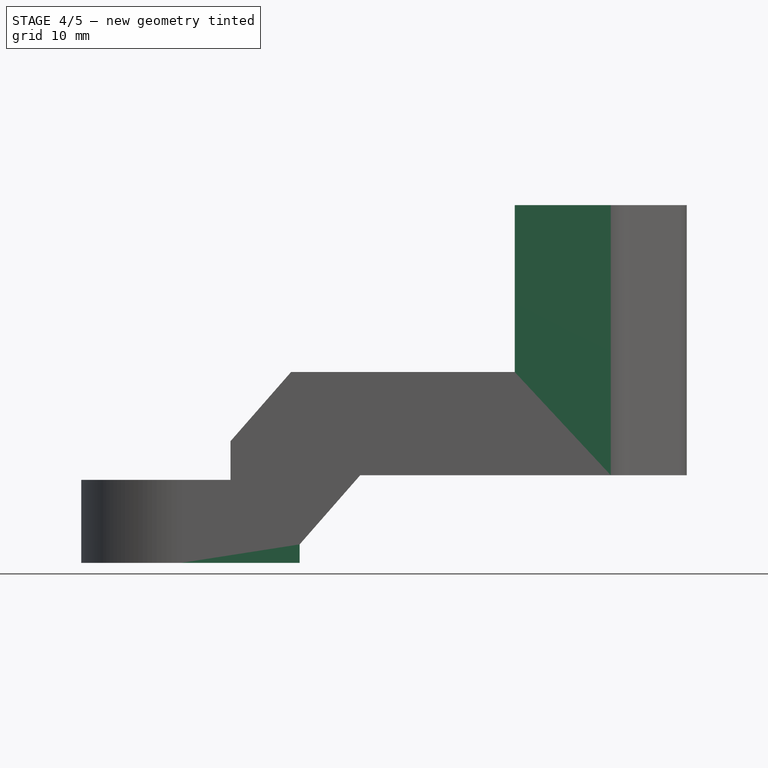
[diagram: stage 4 of 5 — front view after this stage's code; geometry added in this stage tinted green]
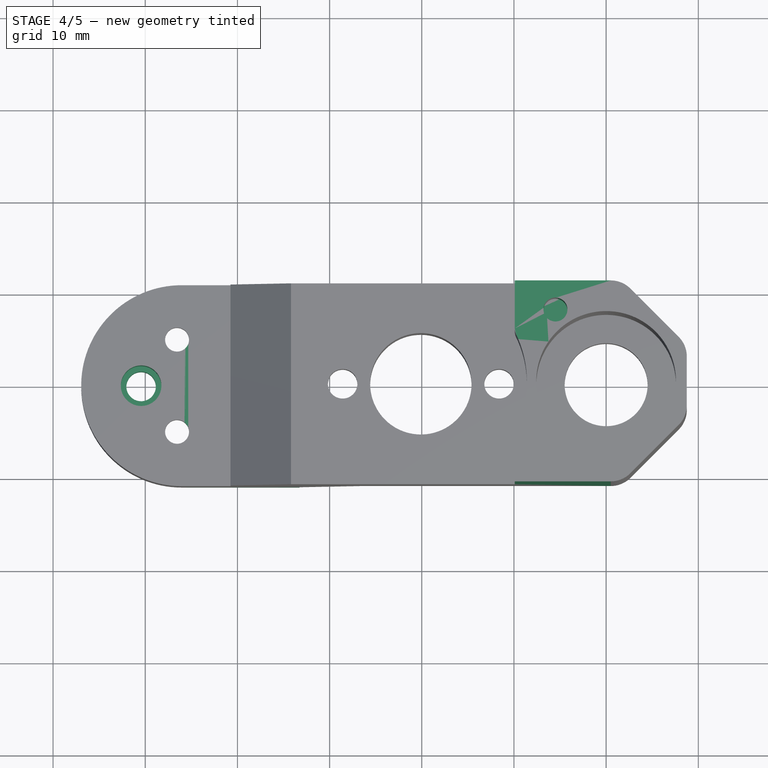
[diagram: stage 4 of 5 — top view after this stage's code; geometry added in this stage tinted green]
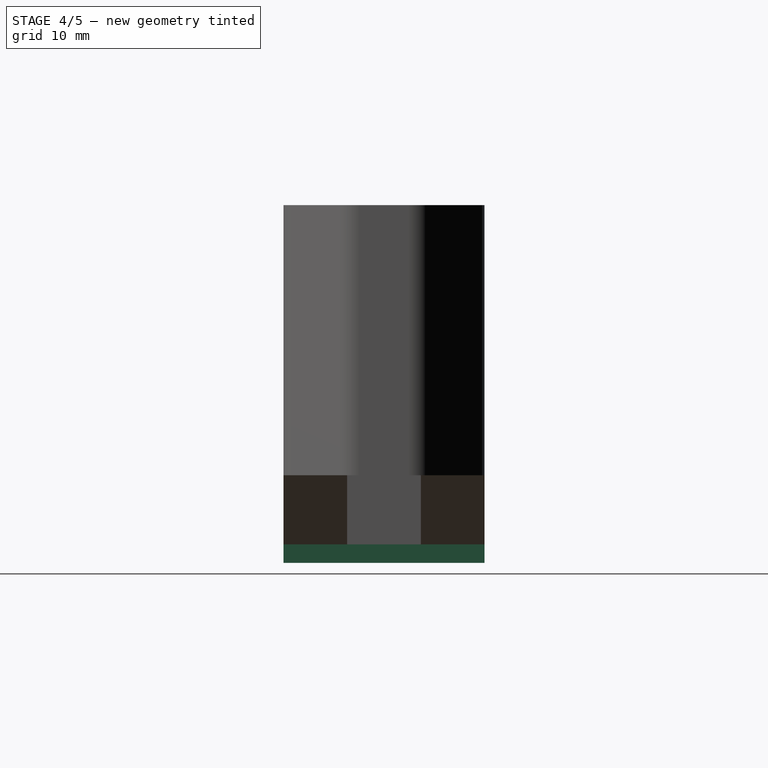
[diagram: stage 4 of 5 — right view after this stage's code; geometry added in this stage tinted green]
FEATURE [Sketcher::SketchObject] Sketch016
  ArcFitTolerance = 1e-06
  AttachmentSupport = -> [Pocket014]
  ExternalGeometry = -> [Pocket014]
  FullyConstrained = true
  MakeInternals = false
  MapMode = 5
  Placement = pos=(0,0,5.5) rot=(1,0,0;3.14159rad)
  sketch-geometry (2):
    g0: Circle CenterX=-28.5853 CenterY=0 CenterZ=0 NormalX=0 NormalY=0 NormalZ=1 AngleXU=0 Radius=2.15
    g1: Circle CenterX=-11.6147 CenterY=0 CenterZ=0 NormalX=0 NormalY=0 NormalZ=1 AngleXU=0 Radius=2.15
  constraints (4):
    c: Coincident(g0,g-3)
    c: Coincident(g1,g-4)
    c: Equal(g1,g0)
    c: Diameter(g0) = 4.3
FEATURE [PartDesign::Pocket] Pocket015
  BaseFeature = -> Pocket014
  Direction = (0,0,1)
  Length = 6
  Length2 = 5
  Profile = -> Sketch016
  ReferenceAxis = -> Sketch016 [N_Axis]
  Refine = true
  Suppressed = false
  Type = 0
FEATURE [PartDesign::Pocket] Pocket016
  BaseFeature = -> Pocket015
  Direction = (0,0,-1)
  Length = 5
  Length2 = 5
  Profile = -> Pocket015 [Face45]
  Refine = true
  Suppressed = false
  Type = 1
FEATURE [Sketcher::SketchObject] Sketch017
  ArcFitTolerance = 1e-06
  AttachmentSupport = -> [Pocket016]
  ExternalGeometry = -> [Pocket016]
  FullyConstrained = true
  MakeInternals = false
  MapMode = 5
  Placement = pos=(0,0,5) rot=(0,0,1;0rad)
  sketch-geometry (1):
    g0: Circle CenterX=-44.75 CenterY=0 CenterZ=0 NormalX=0 NormalY=0 NormalZ=1 AngleXU=0 Radius=1.8
  constraints (3):
    c: Coincident(g0,g-3)
    c: Equal(g0,g-3)
    c: Radius(g-4) = 1.4
FEATURE [PartDesign::Pad] Pad012
  BaseFeature = -> Pocket016
  Direction = (0,0,1)
  Length = 10
  Length2 = 10
  Profile = -> Sketch017
  ReferenceAxis = -> Sketch017 [N_Axis]
  Refine = true
  Suppressed = false
  Type = 3
  UpToFace = -> Pocket016 [Face8]
FEATURE [Sketcher::SketchObject] Sketch018
  ArcFitTolerance = 1e-06
  AttachmentSupport = -> [Pad012]
  ExternalGeometry = -> [Pad012]
  FullyConstrained = true
  MakeInternals = false
  MapMode = 5
  Placement = pos=(0,0,5) rot=(0,0,1;0rad)
  sketch-geometry (1):
    g0: Circle CenterX=-50.45 CenterY=0 CenterZ=0 NormalX=0 NormalY=0 NormalZ=1 AngleXU=0 Radius=2.2
  constraints (2):
    c: Diameter(g0) = 4.4
    c: Coincident(g0,g-3)
FEATURE [PartDesign::Pocket] Pocket017
  BaseFeature = -> Pad012
  Direction = (0,0,-1)
  Length = 5
  Length2 = 5
  Profile = -> Sketch018
  ReferenceAxis = -> Sketch018 [N_Axis]
  Refine = true
  Suppressed = false
  Type = 0
FEATURE [Sketcher::SketchObject] Sketch019
  ArcFitTolerance = 1e-06
  AttachmentSupport = -> [Pocket017]
  ExternalGeometry = -> [Pocket017]
  FullyConstrained = true
  MakeInternals = false
  MapMode = 5
  Placement = pos=(0,0,-2) rot=(1,0,0;3.14159rad)
  sketch-geometry (1):
    g0: Circle CenterX=-50.45 CenterY=0 CenterZ=0 NormalX=0 NormalY=0 NormalZ=1 AngleXU=0 Radius=1.6
  constraints (2):
    c: Coincident(g0,g-3)
    c: Diameter(g0) = 3.2
FEATURE [PartDesign::Pocket] Pocket018
  BaseFeature = -> Pocket017
  Direction = (0,0,1)
  Length = 5
  Length2 = 5
  Profile = -> Sketch019
  ReferenceAxis = -> Sketch019 [N_Axis]
  Refine = true
  Suppressed = false
  Type = 1
FEATURE [Sketcher::SketchObject] Sketch020
  ArcFitTolerance = 1e-06
  AttachmentSupport = -> [Pocket018]
  ExternalGeometry = -> [Pocket018]
  FullyConstrained = true
  MakeInternals = false
  MapMode = 5
  Placement = pos=(0,0,34.8) rot=(0,0,1;0rad)
  sketch-geometry (7):
    g0: LineSegment StartX=-9.90973 StartY=5.68662 StartZ=0 EndX=-9.90973 EndY=10.9 EndZ=0
    g1: LineSegment StartX=-1.45589 StartY=10.9 StartZ=0 EndX=-9.90973 EndY=10.9 EndZ=0
    g2: LineSegment StartX=-9.90973 StartY=5.68662 StartZ=0 EndX=-9.14877 EndY=6.99193 EndZ=0
    g3: LineSegment StartX=-9.14877 StartY=6.99193 StartZ=0 EndX=-1.45589 EndY=10.9 EndZ=0
    g4: LineSegment StartX=-9.90973 StartY=-5.68662 StartZ=0 EndX=-9.90973 EndY=-10.9 EndZ=0
    g5: LineSegment StartX=-9.90973 StartY=-10.9 StartZ=0 EndX=-1.45589 EndY=-10.9 EndZ=0
    g6: LineSegment StartX=-9.90973 StartY=-5.68662 StartZ=0 EndX=-1.45589 EndY=-10.9 EndZ=0
  constraints (16):
    c: PointOnObject(g0,g-3)
    c: Vertical(g0)
    c: Coincident(g1,g0)
    c: Tangent(g0,g-4) = 1.5708
    c: Coincident(g2,g0)
    c: Coincident(g2,g-4)
    c: Coincident(g3,g2)
    c: Coincident(g3,g1)
    c: Coincident(g1,g-3)
    c: PointOnObject(g4,g-7)
    c: Vertical(g4)
    c: Coincident(g5,g4)
    c: Coincident(g5,g-7)
    c: Coincident(g6,g4)
    c: Coincident(g6,g5)
    c: Tangent(g4,g-6) = -1.5708
FEATURE [PartDesign::Pad] Pad013
  BaseFeature = -> Pocket018
  Direction = (0,0,1)
  Length = 10
  Length2 = 10
  Profile = -> Sketch020
  ReferenceAxis = -> Sketch020 [N_Axis]
  Refine = true
  Suppressed = false
  Type = 3
  UpToFace = -> Pocket018 [Face6]
FEATURE [Sketcher::SketchObject] Sketch021
  ArcFitTolerance = 1e-06
  AttachmentSupport = -> [Pad013]
  ExternalGeometry = -> [Pad013]
  FullyConstrained = true
  MakeInternals = false
  MapMode = 5
  Placement = pos=(0,0,34.8) rot=(0,0,1;0rad)
  sketch-geometry (1):
    g0: Circle CenterX=0 CenterY=0 CenterZ=0 NormalX=0 NormalY=0 NormalZ=1 AngleXU=0 Radius=7.575
  constraints (3):
    c: Diameter(g-3) = 15
    c: Coincident(g0,g-1)
    c: Diameter(g0) = 15.15
FEATURE [PartDesign::Pocket] Pocket019
  BaseFeature = -> Pad013
  Direction = (0,0,-1)
  Length = 0
  Length2 = 5
  Profile = -> Sketch021
  ReferenceAxis = -> Sketch021 [N_Axis]
  Refine = true
  Suppressed = false
  Type = 3
  UpToFace = -> Pad013 [Face45]
FEATURE [PartDesign::Pad] Pad014
  BaseFeature = -> Pocket019
  Direction = (0,0,1)
  Length = 10
  Length2 = 10
  Profile = -> Pocket019 [Face27]
  Refine = true
  Suppressed = false
  Type = 3
  UpToFace = -> Pocket019 [Face1]
FEATURE [Sketcher::SketchObject] Sketch023
  ArcFitTolerance = 1e-06
  AttachmentSupport = -> [Pad014]
  FullyConstrained = true
  MakeInternals = false
  MapMode = 5
  Placement = pos=(0,0,34.8) rot=(0,0,1;0rad)
  sketch-geometry (1):
    g0: Circle CenterX=-5.5 CenterY=7.74597 CenterZ=0 NormalX=0 NormalY=0 NormalZ=1 AngleXU=0 Radius=1.3
  constraints (3):
    c: Diameter(g0) = 2.6
    c: Distance(g0,g-1) = 9.5
    c: Distance(g0,g-2) = 5.5
FEATURE [PartDesign::Pocket] Pocket020
  BaseFeature = -> Pad014
  Direction = (0,0,-1)
  Length = 8
  Length2 = 5
  Profile = -> Sketch023
  ReferenceAxis = -> Sketch023 [N_Axis]
  Refine = true
  Suppressed = false
  Type = 0
FEATURE [PartDesign::Pad] Pad015
  BaseFeature = -> Pocket020
  Direction = (0,0,-1)
  Length = 2
  Length2 = 10
  Profile = -> Pocket020 [Face26]
  Refine = true
  Suppressed = false
  Type = 0
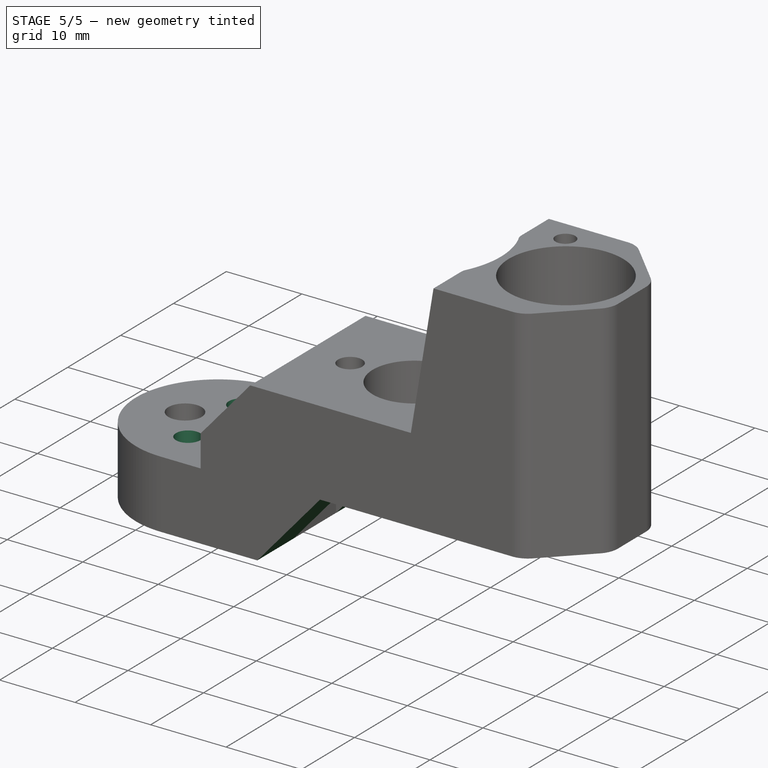
[diagram: stage 5 of 5 — iso view after this stage's code; geometry added in this stage tinted green]
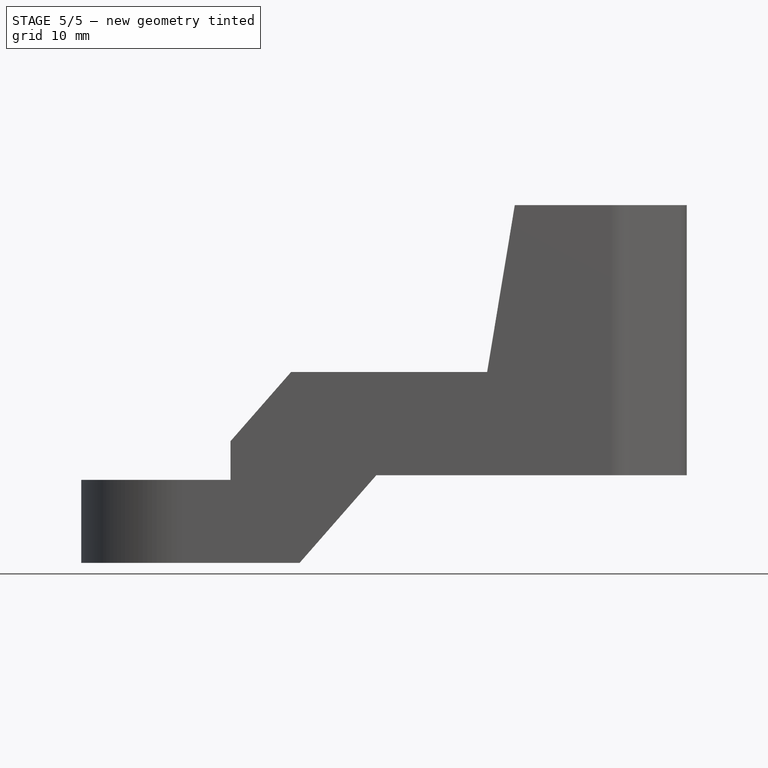
[diagram: stage 5 of 5 — front view after this stage's code; geometry added in this stage tinted green]
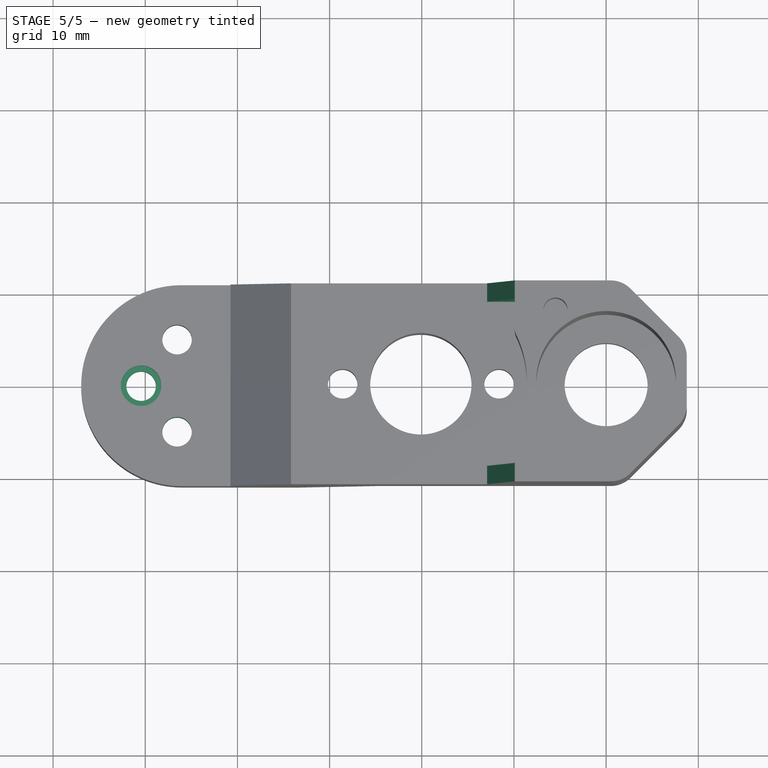
[diagram: stage 5 of 5 — top view after this stage's code; geometry added in this stage tinted green]
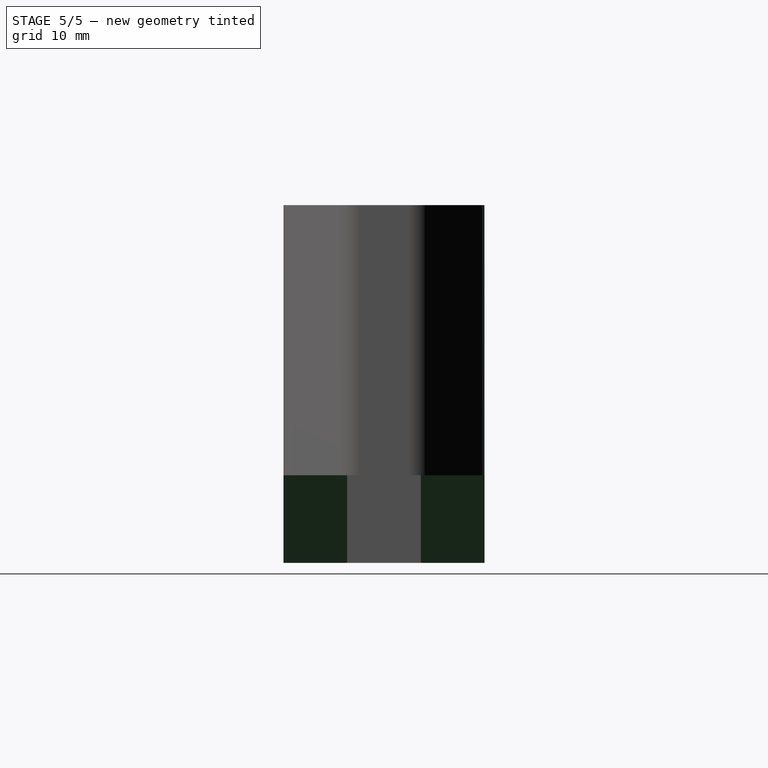
[diagram: stage 5 of 5 — right view after this stage's code; geometry added in this stage tinted green]
FEATURE [Sketcher::SketchObject] Sketch024
  ArcFitTolerance = 1e-06
  AttachmentSupport = -> [Pad015]
  ExternalGeometry = -> [Pad015]
  FullyConstrained = true
  MakeInternals = false
  MapMode = 5
  Placement = pos=(0,-10.9,0) rot=(1,0,0;1.5708rad)
  sketch-geometry (4):
    g0: LineSegment StartX=-33.25 StartY=-4 StartZ=0 EndX=-24.9334 EndY=5.5 EndZ=0
    g1: LineSegment StartX=-33.25 StartY=-4 StartZ=0 EndX=-33.25 EndY=-2 EndZ=0
    g2: LineSegment StartX=-33.25 StartY=-2 StartZ=0 EndX=-26.6842 EndY=5.5 EndZ=0
    g3: LineSegment StartX=-26.6842 StartY=5.5 StartZ=0 EndX=-24.9334 EndY=5.5 EndZ=0
  constraints (9):
    c: Coincident(g0,g-5)
    c: PointOnObject(g0,g-4)
    c: Coincident(g1,g0)
    c: Coincident(g1,g-5)
    c: Coincident(g2,g1)
    c: Coincident(g2,g-4)
    c: Coincident(g3,g2)
    c: Coincident(g3,g0)
    c: Parallel(g0,g2)
FEATURE [PartDesign::Pad] Pad016
  BaseFeature = -> Pad015
  Direction = (0,-1,2e-16)
  Length = 10
  Length2 = 10
  Profile = -> Sketch024
  ReferenceAxis = -> Sketch024 [N_Axis]
  Refine = true
  Suppressed = false
  Type = 3
  UpToFace = -> Pad015 [Face12]
FEATURE [Sketcher::SketchObject] Sketch025
  ArcFitTolerance = 1e-06
  AttachmentSupport = -> [Pad016]
  ExternalGeometry = -> [Pad016]
  FullyConstrained = true
  MakeInternals = false
  MapMode = 5
  Placement = pos=(-5.5e-15,10.9,8.3e-15) rot=(0,0.707107,0.707107;3.14159rad)
  sketch-geometry (4):
    g0: LineSegment StartX=24.9334 StartY=5.5 StartZ=0 EndX=26.6842 EndY=5.5 EndZ=0
    g1: LineSegment StartX=33.25 StartY=-4 StartZ=0 EndX=33.25 EndY=-2 EndZ=0
    g2: LineSegment StartX=33.25 StartY=-2 StartZ=0 EndX=26.6842 EndY=5.5 EndZ=0
    g3: LineSegment StartX=24.9334 StartY=5.5 StartZ=0 EndX=33.25 EndY=-4 EndZ=0
  constraints (8):
    c: Coincident(g0,g-3)
    c: Coincident(g0,g-4)
    c: Coincident(g1,g-3)
    c: Coincident(g1,g-4)
    c: Coincident(g2,g1)
    c: Coincident(g2,g0)
    c: Coincident(g3,g0)
    c: Coincident(g3,g1)
FEATURE [PartDesign::Pad] Pad017
  BaseFeature = -> Pad016
  Direction = (0,1,-2e-16)
  Length = 10
  Length2 = 10
  Profile = -> Sketch025
  ReferenceAxis = -> Sketch025 [N_Axis]
  Refine = true
  Suppressed = false
  Type = 3
  UpToFace = -> Pad016 [Face12]
FEATURE [Sketcher::SketchObject] Sketch026
  ArcFitTolerance = 1e-06
  AttachmentSupport = -> [Pad017]
  ExternalGeometry = -> [Pad017]
  FullyConstrained = true
  MakeInternals = false
  MapMode = 5
  Placement = pos=(0,0,5) rot=(0,0,1;0rad)
  sketch-geometry (2):
    g0: Circle CenterX=-46.55 CenterY=5 CenterZ=0 NormalX=0 NormalY=0 NormalZ=1 AngleXU=0 Radius=1.6
    g1: Circle CenterX=-46.55 CenterY=-5 CenterZ=0 NormalX=0 NormalY=0 NormalZ=1 AngleXU=0 Radius=1.6
  constraints (4):
    c: Coincident(g0,g-3)
    c: Coincident(g1,g-4)
    c: Equal(g1,g0)
    c: Diameter(g0) = 3.2
FEATURE [PartDesign::Pocket] Pocket021
  BaseFeature = -> Pad017
  Direction = (0,0,-1)
  Length = 5
  Length2 = 5
  Profile = -> Sketch026
  ReferenceAxis = -> Sketch026 [N_Axis]
  Refine = true
  Suppressed = false
  Type = 0
FEATURE [PartDesign::Pad] Pad018
  BaseFeature = -> Pocket021
  Direction = (0,0,-1)
  Length = 1
  Length2 = 10
  Profile = -> Pocket021 [Face30,Face31]
  Refine = true
  Suppressed = false
  Type = 0
FEATURE [PartDesign::Pad] Pad019
  BaseFeature = -> Pad018
  Direction = (0,0,-1)
  Length = 2
  Length2 = 10
  Profile = -> Pad018 [Face43,Face45]
  Refine = true
  Suppressed = false
  Type = 0
FEATURE [PartDesign::Pad] Pad020
  BaseFeature = -> Pad019
  Direction = (0,0,1)
  Length = 2
  Length2 = 10
  Profile = -> Pad019 [Face44]
  Refine = true
  Suppressed = false
  Type = 0
FEATURE [Sketcher::SketchObject] Sketch027
  ArcFitTolerance = 1e-06
  AttachmentSupport = -> [Pad020]
  ExternalGeometry = -> [Pad020]
  FullyConstrained = false
  MakeInternals = false
  MapMode = 5
  Placement = pos=(0,0,16.7) rot=(0,0,1;0rad)
  sketch-geometry (1):
    g0: Circle CenterX=-20.1 CenterY=0 CenterZ=0 NormalX=0 NormalY=0 NormalZ=1 AngleXU=0 Radius=11.3264
  constraints (1):
    c: Coincident(g0,g-3)
FEATURE [Sketcher::SketchObject] Sketch028
  ArcFitTolerance = 1e-06
  AttachmentSupport = -> [Pad020]
  ExternalGeometry = -> [Pad020]
  FullyConstrained = true
  MakeInternals = false
  MapMode = 5
  Placement = pos=(-6e-15,10.9,6.2e-15) rot=(0,0.707107,0.707107;3.14159rad)
  sketch-geometry (3):
    g0: LineSegment StartX=9.90973 StartY=34.8 StartZ=0 EndX=12.9097 EndY=16.7 EndZ=0
    g1: LineSegment StartX=9.90973 StartY=34.8 StartZ=0 EndX=9.90973 EndY=16.7 EndZ=0
    g2: LineSegment StartX=9.90973 StartY=16.7 StartZ=0 EndX=12.9097 EndY=16.7 EndZ=0
  constraints (7):
    c: Coincident(g0,g-3)
    c: PointOnObject(g0,g-4)
    c: Coincident(g1,g0)
    c: Coincident(g1,g-4)
    c: Coincident(g2,g1)
    c: Coincident(g2,g0)
    c: Distance(g2,g2) = 3
FEATURE [PartDesign::Pad] Pad021
  BaseFeature = -> Pad020
  Direction = (0,1,-2e-16)
  Length = 2
  Length2 = 10
  Profile = -> Sketch028
  ReferenceAxis = -> Sketch028 [N_Axis]
  Refine = true
  Reversed = true
  Suppressed = false
  Type = 0
FEATURE [Sketcher::SketchObject] Sketch029
  ArcFitTolerance = 1e-06
  AttachmentSupport = -> [Pad021]
  ExternalGeometry = -> [Pad021]
  FullyConstrained = true
  MakeInternals = false
  MapMode = 5
  Placement = pos=(0,-10.9,0) rot=(1,0,0;1.5708rad)
  sketch-geometry (3):
    g0: LineSegment StartX=-9.90973 StartY=34.8 StartZ=0 EndX=-9.90973 EndY=16.7 EndZ=0
    g1: LineSegment StartX=-9.90973 StartY=16.7 StartZ=0 EndX=-12.9097 EndY=16.7 EndZ=0
    g2: LineSegment StartX=-12.9097 StartY=16.7 StartZ=0 EndX=-9.90973 EndY=34.8 EndZ=0
  constraints (6):
    c: Coincident(g0,g-5)
    c: Coincident(g0,g-4)
    c: Coincident(g1,g0)
    c: Coincident(g1,g-5)
    c: Coincident(g2,g1)
    c: Coincident(g2,g0)
FEATURE [PartDesign::Pad] Pad022
  BaseFeature = -> Pad021
  Direction = (0,-1,2e-16)
  Length = 2
  Length2 = 10
  Profile = -> Sketch029
  ReferenceAxis = -> Sketch029 [N_Axis]
  Refine = true
  Reversed = true
  Suppressed = false
  Type = 0
FEATURE [Sketcher::SketchObject] Sketch030
  ArcFitTolerance = 1e-06
  AttachmentSupport = -> [Pad022]
  ExternalGeometry = -> [Pad022]
  FullyConstrained = true
  MakeInternals = false
  MapMode = 5
  Placement = pos=(0,0,-4) rot=(1,0,0;3.14159rad)
  sketch-geometry (1):
    g0: Circle CenterX=-50.45 CenterY=0 CenterZ=0 NormalX=0 NormalY=0 NormalZ=1 AngleXU=0 Radius=3.1
  constraints (2):
    c: Coincident(g0,g-3)
    c: Diameter(g0) = 6.2
FEATURE [PartDesign::Pocket] Pocket022
  BaseFeature = -> Pad022
  Direction = (0,0,1)
  Length = 3
  Length2 = 5
  Profile = -> Sketch030
  ReferenceAxis = -> Sketch030 [N_Axis]
  Refine = true
  Suppressed = false
  Type = 0
FEATURE [PartDesign::Body] Body  label="k1_z_carriage_oldham"
  AllowCompound = false
  BaseFeature = -> Part__Feature
  Group = -> [BaseFeature,DatumPlane,Sketch,Pocket,Pad,Pad001,DatumLine,DatumLine001,Sketch001,Pocket001,DatumLine002,Sketch002,Pad002,Sketch003,Pad003,DatumPlane001,Sketch004,Pad004,Pocket002,Pocket003,Pocket004,Pad005,Sketch005,Pocket005,Sketch006,Pocket006,Sketch007,Pocket007,Pad006,Sketch008,Pocket008,Sketch009,Pocket009,Pad007,DatumLine003,DatumLine004,Sketch010,Pocket010,Pad008,Pocket011,Pad009,Pad010,+41 more]
  Origin = -> Origin
  Tip = -> Pocket022
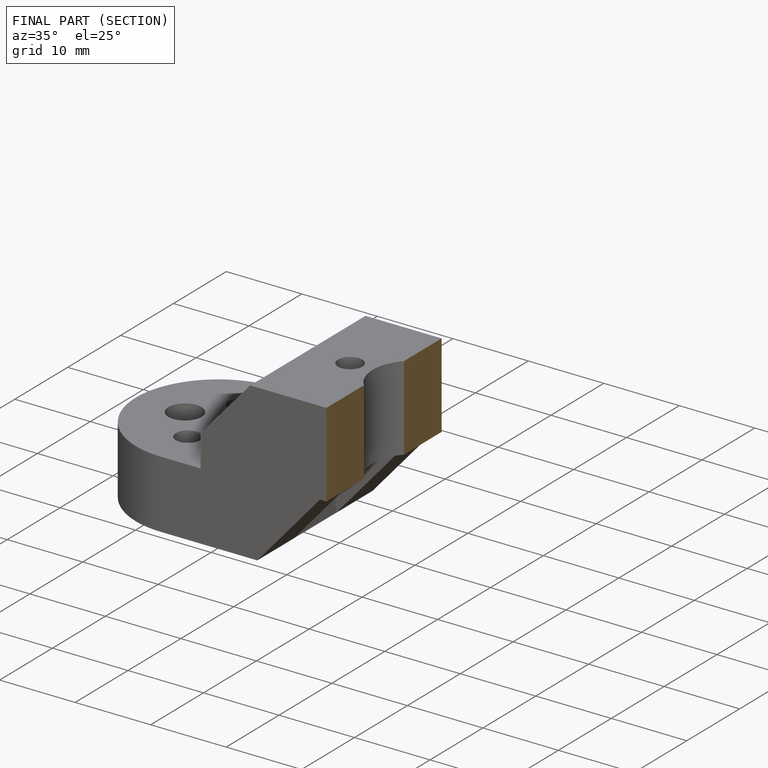
[diagram: finished part — half-section view (interior)]
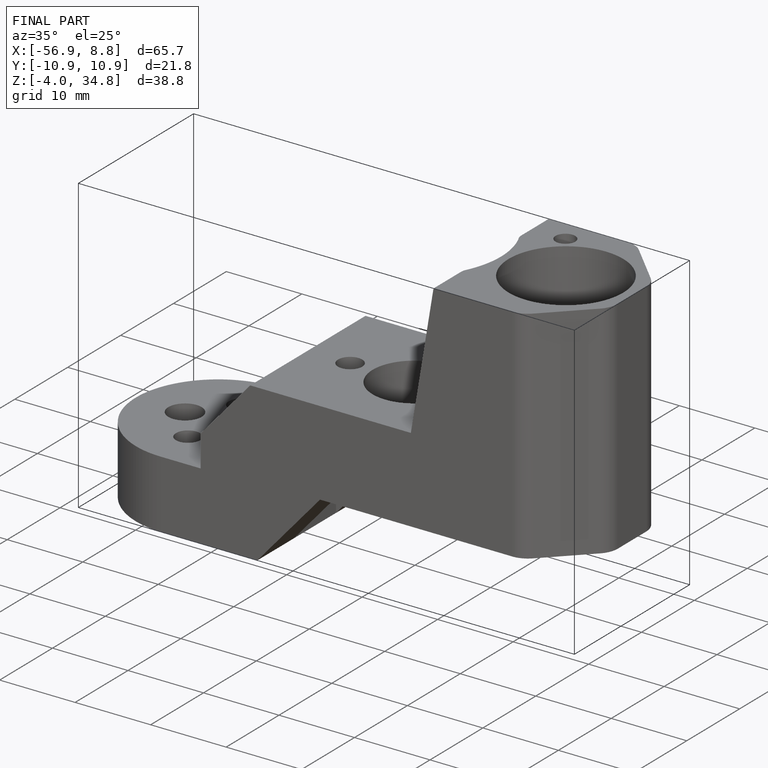
[diagram: finished part — iso view with bounding-box wireframe]
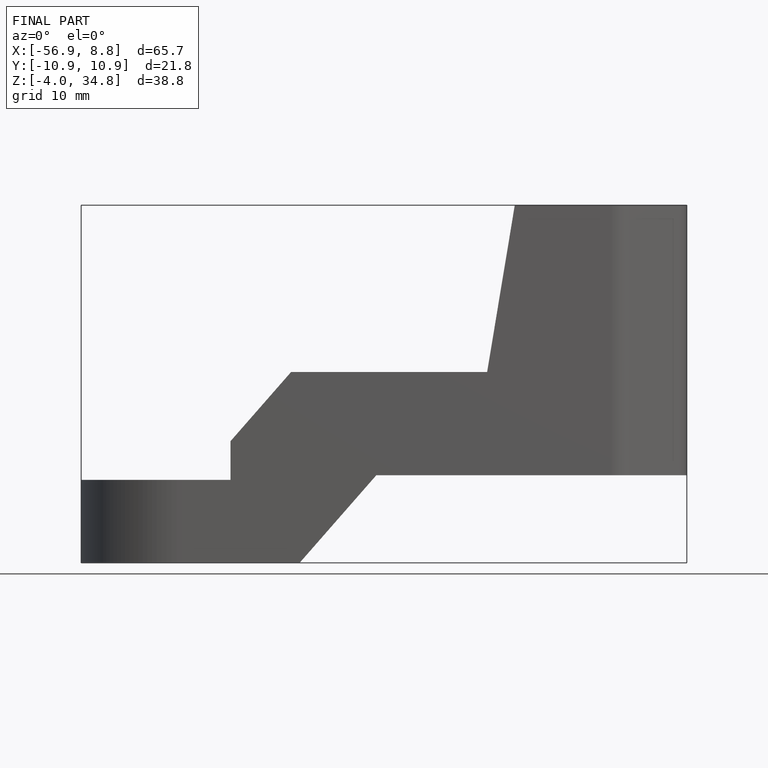
[diagram: finished part — front view with bounding-box wireframe]
